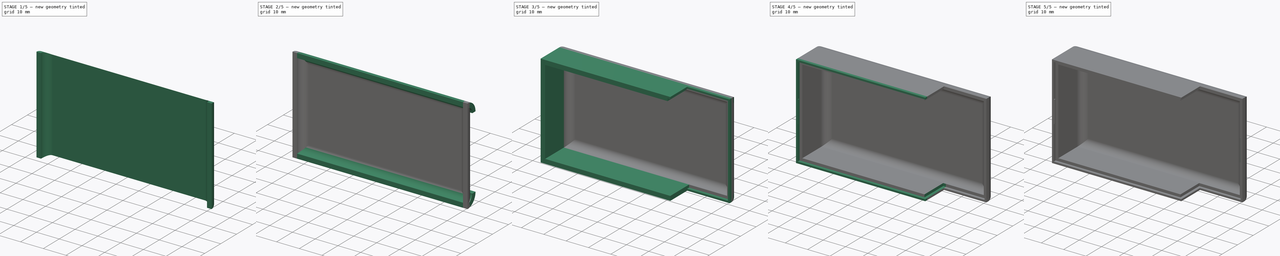
[diagram: build sequence overview — one tinted view per stage of 5, left to right]
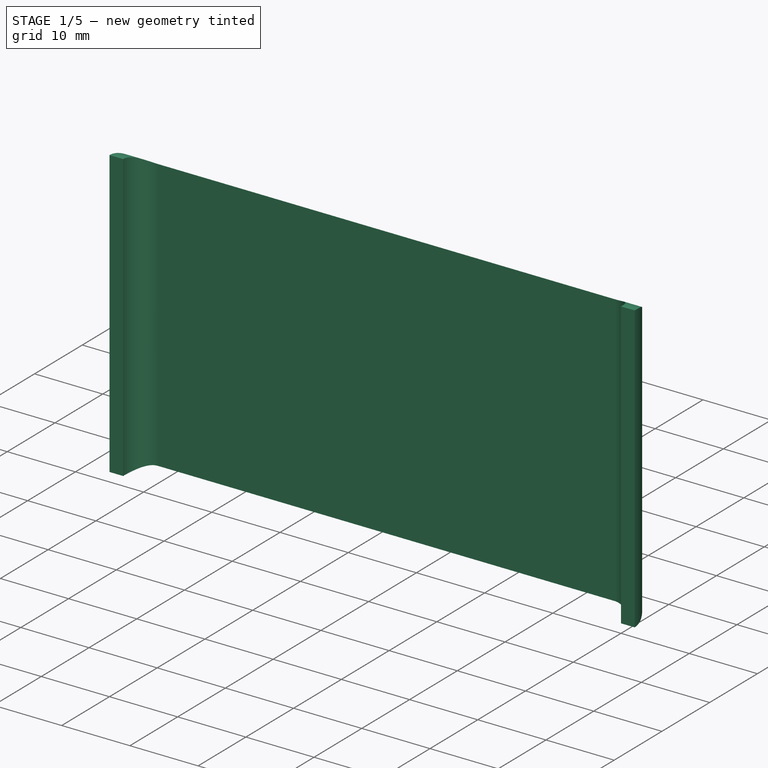
[diagram: stage 1 of 5 — iso view after this stage's code; geometry added in this stage tinted green]
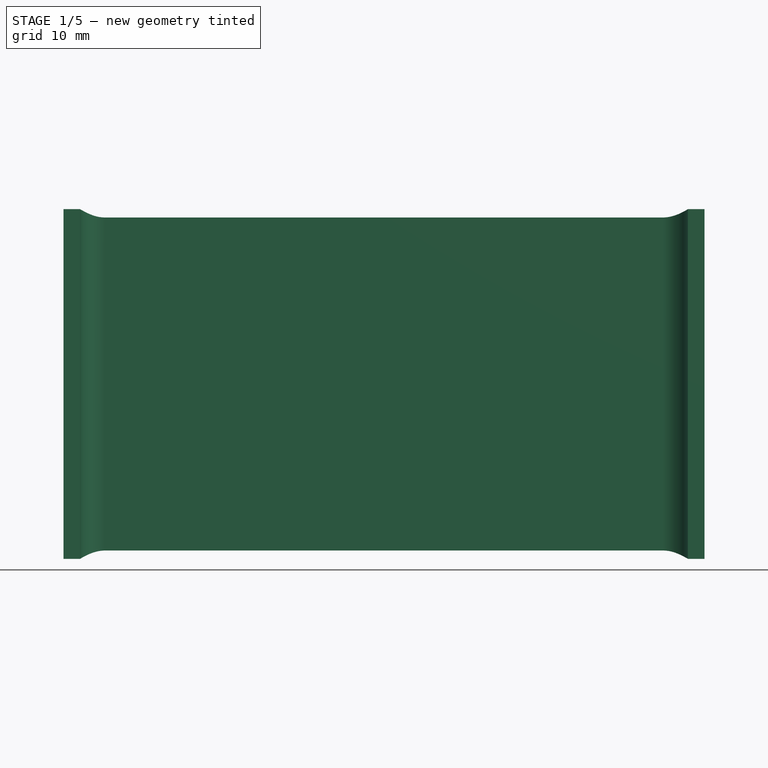
[diagram: stage 1 of 5 — front view after this stage's code; geometry added in this stage tinted green]
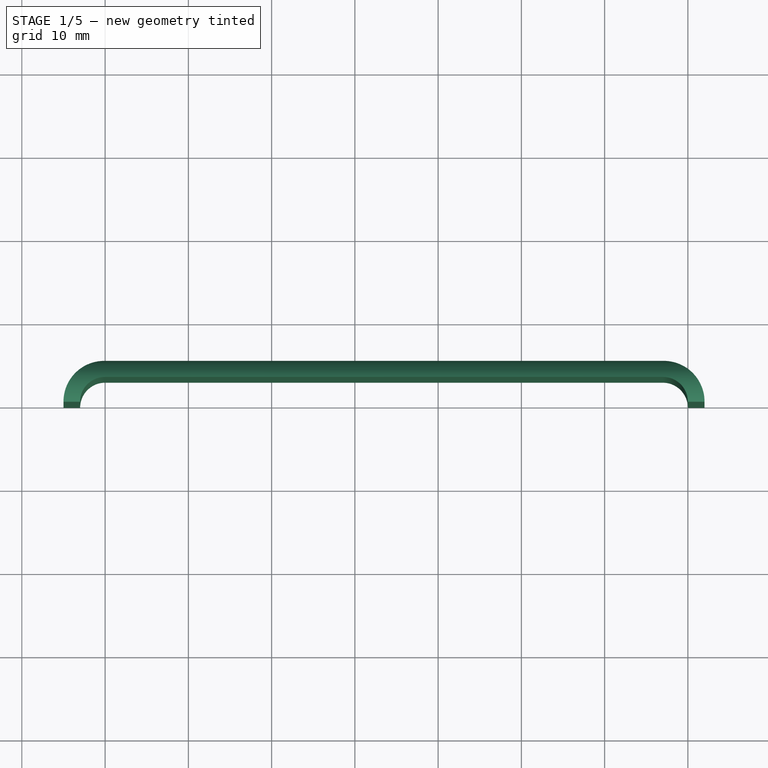
[diagram: stage 1 of 5 — top view after this stage's code; geometry added in this stage tinted green]
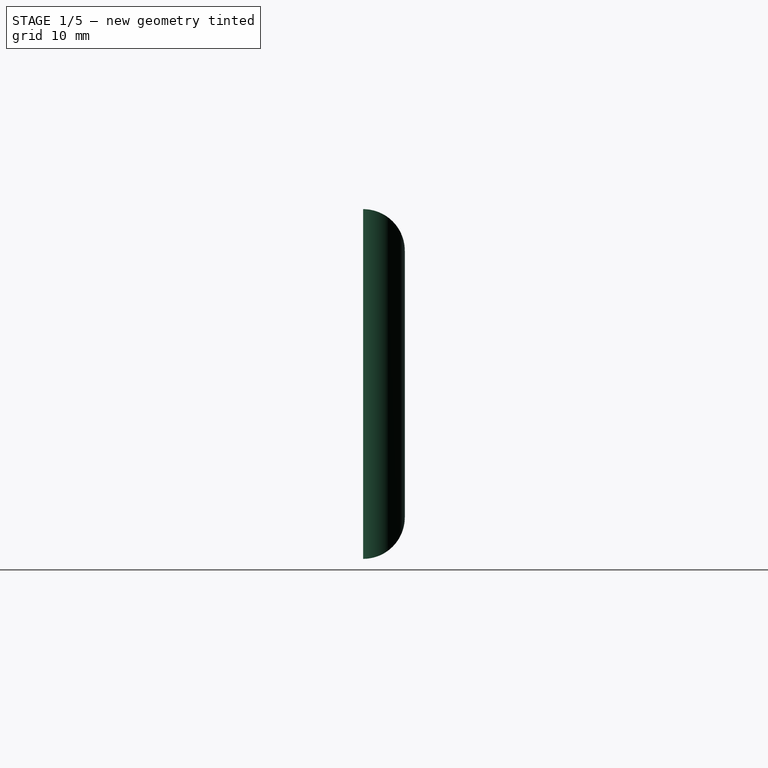
[diagram: stage 1 of 5 — right view after this stage's code; geometry added in this stage tinted green]
FCSTD DOCUMENT  (FreeCAD 0.20R29603 (Git))
Label: batteryHolderCap
License: All rights reserved
LicenseURL: http://en.wikipedia.org/wiki/All_rights_reserved
objects: Sketcher::SketchObject×14, PartDesign::Pad×8, PartDesign::Pocket×6, PartDesign::Fillet×2, PartDesign::Plane×1, PartDesign::Body×1
note: 48 computed .brp shape members not serialized (recipe doc carries the construction recipe); baked Part::Feature solids carry a one-line shape summary decoded from their .brp

FEATURE [Sketcher::SketchObject] Sketch
  FullyConstrained = true
  MapMode = 5
  Support = -> [XY_Plane]
  sketch-geometry (8):
    g0: LineSegment StartX=4.47964e-11 StartY=3 StartZ=0 EndX=67 EndY=3 EndZ=0
    g1: LineSegment StartX=3e-16 StartY=5 StartZ=0 EndX=67 EndY=5 EndZ=0
    g2: ArcOfCircle CenterX=0 CenterY=0 CenterZ=0 NormalX=0 NormalY=0 NormalZ=1 AngleXU=0 Radius=3 StartAngle=1.5708 EndAngle=3.14159
    g3: ArcOfCircle CenterX=0 CenterY=0 CenterZ=0 NormalX=0 NormalY=0 NormalZ=1 AngleXU=0 Radius=5 StartAngle=1.5708 EndAngle=3.14159
    g4: LineSegment StartX=-5 StartY=6e-16 StartZ=0 EndX=-3 EndY=3.73332e-11 EndZ=0
    g5: ArcOfCircle CenterX=67 CenterY=0 CenterZ=0 NormalX=0 NormalY=0 NormalZ=1 AngleXU=0 Radius=3 StartAngle=0 EndAngle=1.5708
    g6: ArcOfCircle CenterX=67 CenterY=0 CenterZ=0 NormalX=0 NormalY=0 NormalZ=1 AngleXU=0 Radius=5 StartAngle=0 EndAngle=1.5708
    g7: LineSegment StartX=70 StartY=0 StartZ=0 EndX=72 EndY=0 EndZ=0
  constraints (25):
    c: PointOnObject(g0,g-2)
    c: Horizontal(g0)
    c: DistanceX(g0,g0) = 67
    c: Distance(g-1,g0) = 3
    c: PointOnObject(g1,g-2)
    c: Horizontal(g1)
    c: Equal(g1,g0)
    c: Distance(g1,g0) = 2
    c: Coincident(g2,g-1)
    c: Coincident(g2,g0)
    c: PointOnObject(g2,g-1)
    c: Coincident(g3,g2)
    c: Coincident(g3,g1)
    c: PointOnObject(g3,g-1)
    c: Coincident(g4,g3)
    c: Coincident(g4,g2)
    c: PointOnObject(g5,g-1)
    c: Coincident(g5,g0)
    c: PointOnObject(g5,g-1)
    c: DistanceX(g0,g5) = 0
    c: Coincident(g6,g5)
    c: Coincident(g6,g1)
    c: PointOnObject(g6,g-1)
    c: Coincident(g7,g5)
    c: Coincident(g7,g6)
FEATURE [PartDesign::Pad] Pad
  Direction = (0,0,1)
  Length = 42
  Length2 = 10
  Profile = -> Sketch
  ReferenceAxis = -> Sketch [N_Axis]
  Type = 0
FEATURE [PartDesign::Plane] DatumPlane
  AttachmentOffset = pos=(-5,0,0) rot=(0,1,0;1.5708rad)
  Length = 78.5758
  MapMode = 5
  Placement = pos=(-5,0,42) rot=(0,1,0;1.5708rad)
  ResizeMode = 0
  Support = -> [Pad]
  Width = 61.5758
FEATURE [Sketcher::SketchObject] Sketch001
  AttachmentOffset = pos=(0,0,77) rot=(0,0,1;0rad)
  FullyConstrained = true
  MapMode = 5
  Placement = pos=(72,0,42) rot=(0,1,0;1.5708rad)
  Support = -> [DatumPlane]
  sketch-geometry (3):
    g0: ArcOfCircle CenterX=5 CenterY=0 CenterZ=0 NormalX=0 NormalY=0 NormalZ=1 AngleXU=0 Radius=5 StartAngle=1.5708 EndAngle=3.14159
    g1: LineSegment StartX=5 StartY=5 StartZ=0 EndX=0 EndY=5 EndZ=0
    g2: LineSegment StartX=0 StartY=5 StartZ=0 EndX=0 EndY=9e-16 EndZ=0
  constraints (9):
    c: PointOnObject(g0,g-1)
    c: DistanceX(g0,g0) = 0
    c: Horizontal(g1)
    c: Coincident(g2,g1)
    c: Vertical(g2)
    c: DistanceX(g-1,g0) = 5
    c: Coincident(g2,g0)
    c: Coincident(g0,g1)
    c: Coincident(g0,g-1)
FEATURE [Sketcher::SketchObject] Sketch002
  AttachmentOffset = pos=(0,0,77) rot=(0,0,1;0rad)
  FullyConstrained = false
  MapMode = 5
  Placement = pos=(72,0,42) rot=(0,1,0;1.5708rad)
  Support = -> [DatumPlane]
  sketch-geometry (3):
    g0: ArcOfCircle CenterX=37 CenterY=0 CenterZ=0 NormalX=0 NormalY=0 NormalZ=1 AngleXU=0 Radius=5 StartAngle=2e-16 EndAngle=1.5708
    g1: LineSegment StartX=37 StartY=5 StartZ=0 EndX=43.271 EndY=5 EndZ=0
    g2: LineSegment StartX=42 StartY=1e-15 StartZ=0 EndX=43.271 EndY=5 EndZ=0
  constraints (7):
    c: PointOnObject(g0,g-1)
    c: Radius(g0) = 5
    c: DistanceX(g0,g0) = 0
    c: Coincident(g1,g0)
    c: Horizontal(g1)
    c: Coincident(g2,g0)
    c: Coincident(g2,g1)
FEATURE [Sketcher::SketchObject] Sketch003
  FullyConstrained = true
  MapMode = 5
  Placement = pos=(-5,0,42) rot=(0,1,0;1.5708rad)
  Support = -> [DatumPlane]
  sketch-geometry (4):
    g0: ArcOfCircle CenterX=5 CenterY=0 CenterZ=0 NormalX=0 NormalY=0 NormalZ=1 AngleXU=0 Radius=5 StartAngle=1.5708 EndAngle=3.14159
    g1: ArcOfCircle CenterX=5 CenterY=0 CenterZ=0 NormalX=0 NormalY=0 NormalZ=1 AngleXU=0 Radius=3 StartAngle=1.5708 EndAngle=3.14159
    g2: LineSegment StartX=5 StartY=5 StartZ=0 EndX=5 EndY=3 EndZ=0
    g3: LineSegment StartX=0 StartY=6e-16 StartZ=0 EndX=2 EndY=4e-16 EndZ=0
  constraints (12):
    c: PointOnObject(g0,g-1)
    c: Radius(g0) = 5
    c: DistanceX(g0,g0) = 0
    c: Coincident(g1,g0)
    c: PointOnObject(g1,g-1)
    c: Radius(g1) = 3
    c: Coincident(g2,g0)
    c: Coincident(g2,g1)
    c: Vertical(g2)
    c: Coincident(g3,g0)
    c: Coincident(g3,g1)
    c: Coincident(g-1,g0)
FEATURE [Sketcher::SketchObject] Sketch004
  FullyConstrained = true
  MapMode = 5
  Placement = pos=(-5,0,42) rot=(0,1,0;1.5708rad)
  Support = -> [DatumPlane]
  sketch-geometry (4):
    g0: ArcOfCircle CenterX=37 CenterY=0 CenterZ=0 NormalX=0 NormalY=0 NormalZ=1 AngleXU=0 Radius=5 StartAngle=0 EndAngle=1.5708
    g1: ArcOfCircle CenterX=37 CenterY=0 CenterZ=0 NormalX=0 NormalY=0 NormalZ=1 AngleXU=0 Radius=3 StartAngle=0 EndAngle=1.5708
    g2: LineSegment StartX=37 StartY=3 StartZ=0 EndX=37 EndY=5 EndZ=0
    g3: LineSegment StartX=42 StartY=0 StartZ=0 EndX=40 EndY=0 EndZ=0
  constraints (13):
    c: PointOnObject(g0,g-1)
    c: Radius(g0) = 5
    c: DistanceX(g0,g0) = 0
    c: Coincident(g1,g0)
    c: PointOnObject(g1,g-1)
    c: Radius(g1) = 3
    c: Coincident(g2,g1)
    c: Coincident(g2,g0)
    c: Vertical(g2)
    c: Coincident(g3,g0)
    c: Coincident(g3,g1)
    c: Horizontal(g3)
    c: Distance(g-1,g0) = 42
FEATURE [PartDesign::Pocket] Pocket001
  BaseFeature = -> Pad
  Direction = (-1,0,-2e-16)
  Length = 77
  Length2 = 5
  Profile = -> Sketch002
  ReferenceAxis = -> Sketch002 [N_Axis]
  Type = 0
FEATURE [PartDesign::Pocket] Pocket
  BaseFeature = -> Pocket001
  Direction = (-1,0,-2e-16)
  Length = 77
  Length2 = 5
  Profile = -> Sketch001
  ReferenceAxis = -> Sketch001 [N_Axis]
  Type = 0
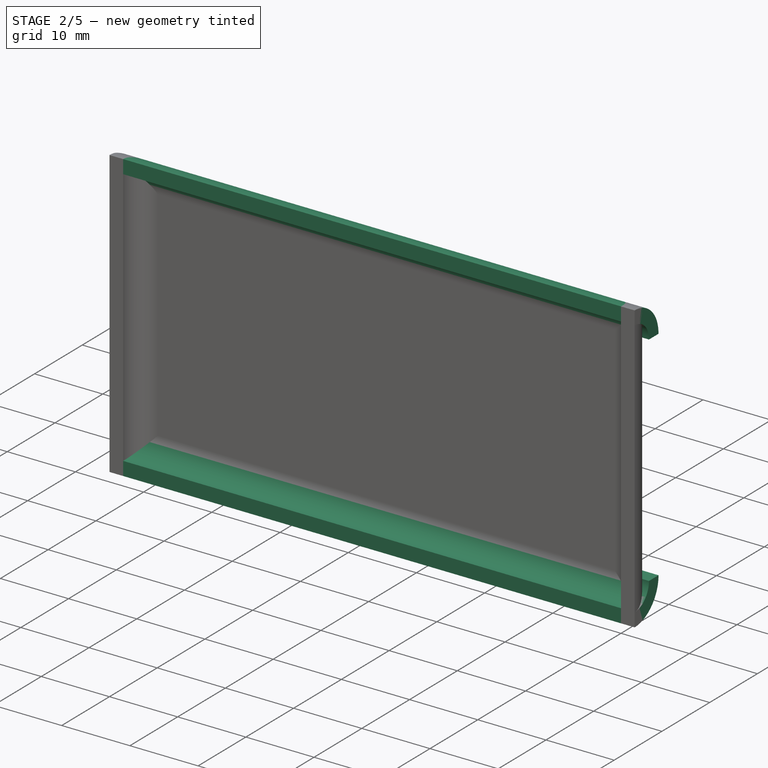
[diagram: stage 2 of 5 — iso view after this stage's code; geometry added in this stage tinted green]
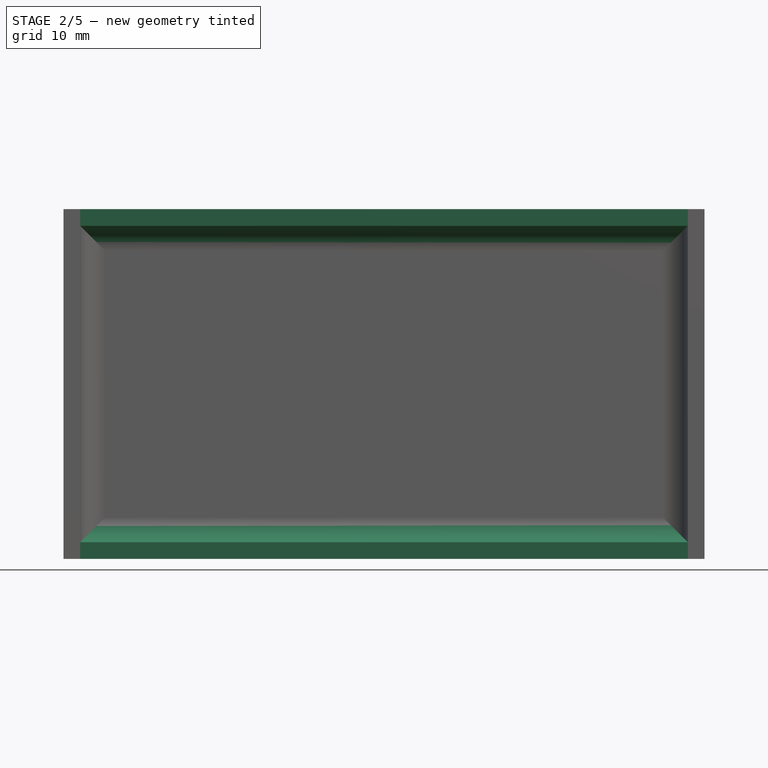
[diagram: stage 2 of 5 — front view after this stage's code; geometry added in this stage tinted green]
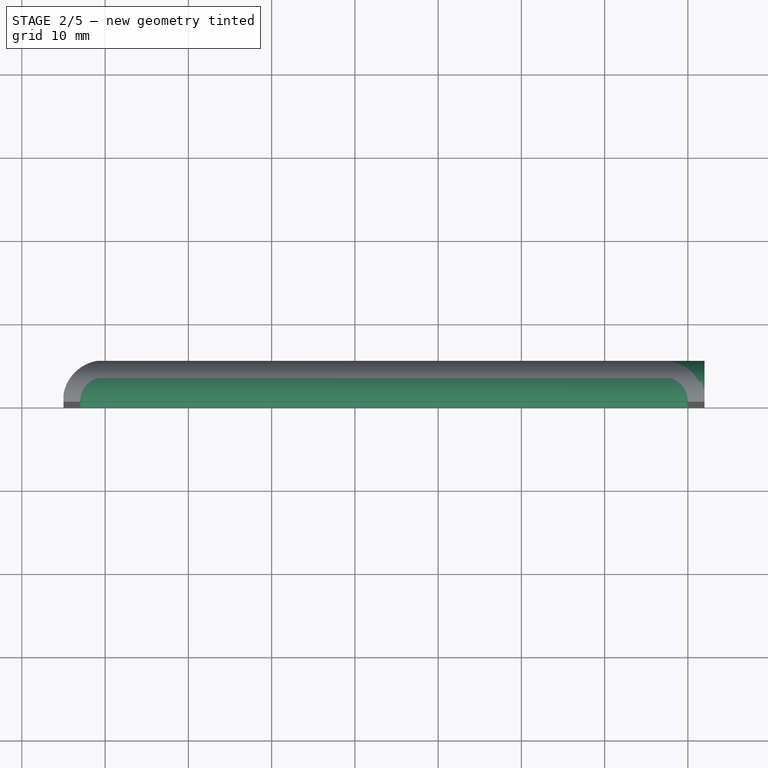
[diagram: stage 2 of 5 — top view after this stage's code; geometry added in this stage tinted green]
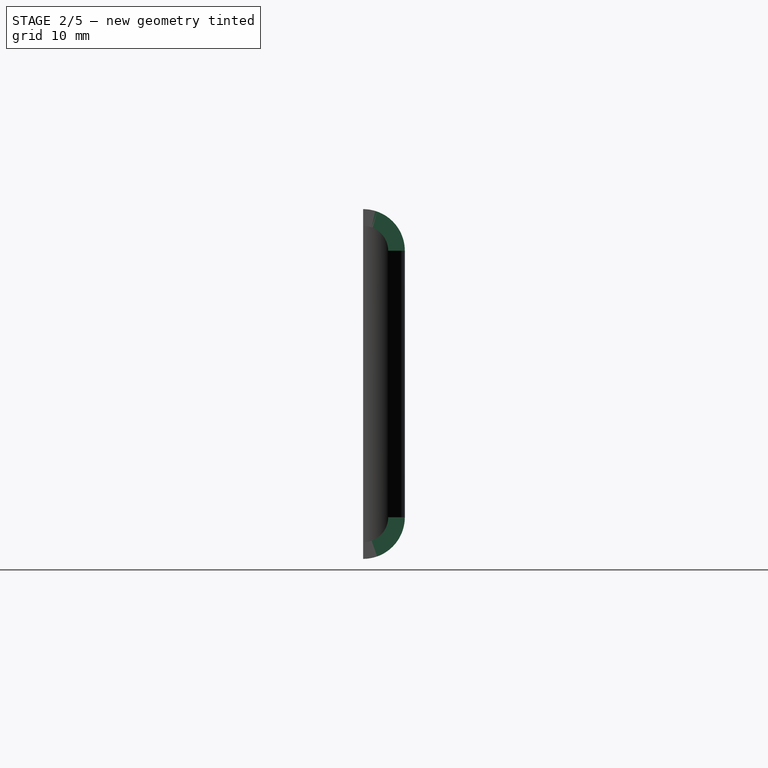
[diagram: stage 2 of 5 — right view after this stage's code; geometry added in this stage tinted green]
FEATURE [PartDesign::Pad] Pad001
  BaseFeature = -> Pocket
  Direction = (1,0,2e-16)
  Length = 77
  Length2 = 10
  Profile = -> Sketch003
  ReferenceAxis = -> Sketch003 [N_Axis]
  Type = 0
FEATURE [PartDesign::Pad] Pad002
  BaseFeature = -> Pad001
  Direction = (1,0,2e-16)
  Length = 77
  Length2 = 10
  Profile = -> Sketch004
  ReferenceAxis = -> Sketch004 [N_Axis]
  Type = 0
FEATURE [Sketcher::SketchObject] Sketch005
  AttachmentOffset = pos=(0,0,37) rot=(0,0,1;0rad)
  FullyConstrained = false
  MapMode = 5
  Placement = pos=(-9.3e-15,0,42) rot=(0,0,1;0rad)
  Support = -> [Pad002]
  sketch-geometry (3):
    g0: ArcOfCircle CenterX=0 CenterY=0 CenterZ=0 NormalX=0 NormalY=0 NormalZ=1 AngleXU=0 Radius=5.07821 StartAngle=1.5708 EndAngle=3.14159
    g1: LineSegment StartX=3e-16 StartY=5.07821 StartZ=0 EndX=-5.07818 EndY=5.07821 EndZ=0
    g2: LineSegment StartX=-5.07821 StartY=6e-16 StartZ=0 EndX=-5.07818 EndY=5.07821 EndZ=0
  constraints (8):
    c: Coincident(g0,g-1)
    c: PointOnObject(g0,g-1)
    c: PointOnObject(g0,g-2)
    c: Coincident(g1,g0)
    c: Horizontal(g1)
    c: Coincident(g2,g0)
    c: Coincident(g2,g1)
    c: Tangent(g2,g0)
FEATURE [PartDesign::Pocket] Pocket002
  BaseFeature = -> Pad002
  Direction = (2e-16,0,-1)
  Length = 42
  Length2 = 5
  Profile = -> Sketch005
  ReferenceAxis = -> Sketch005 [N_Axis]
  Type = 0
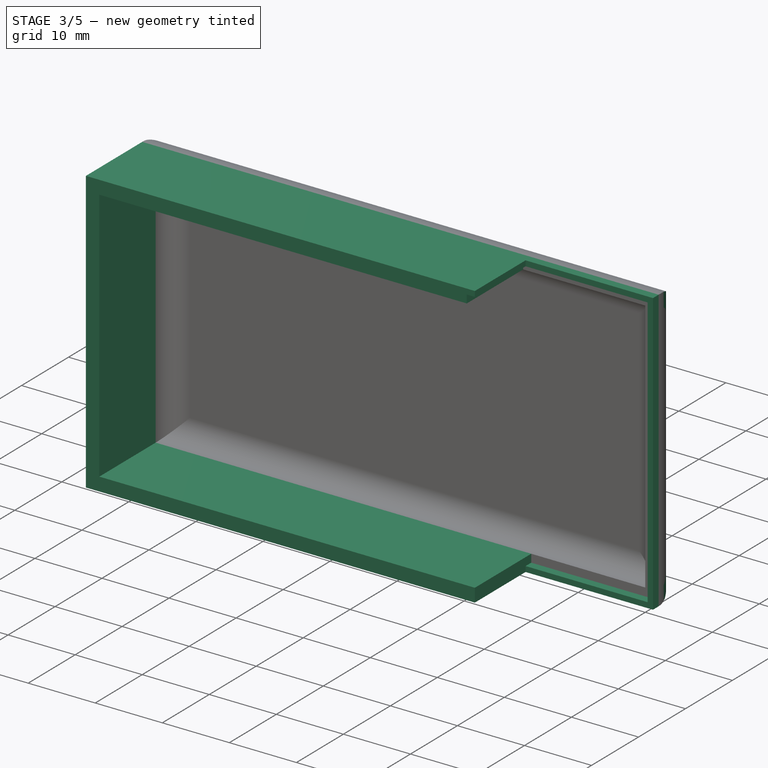
[diagram: stage 3 of 5 — iso view after this stage's code; geometry added in this stage tinted green]
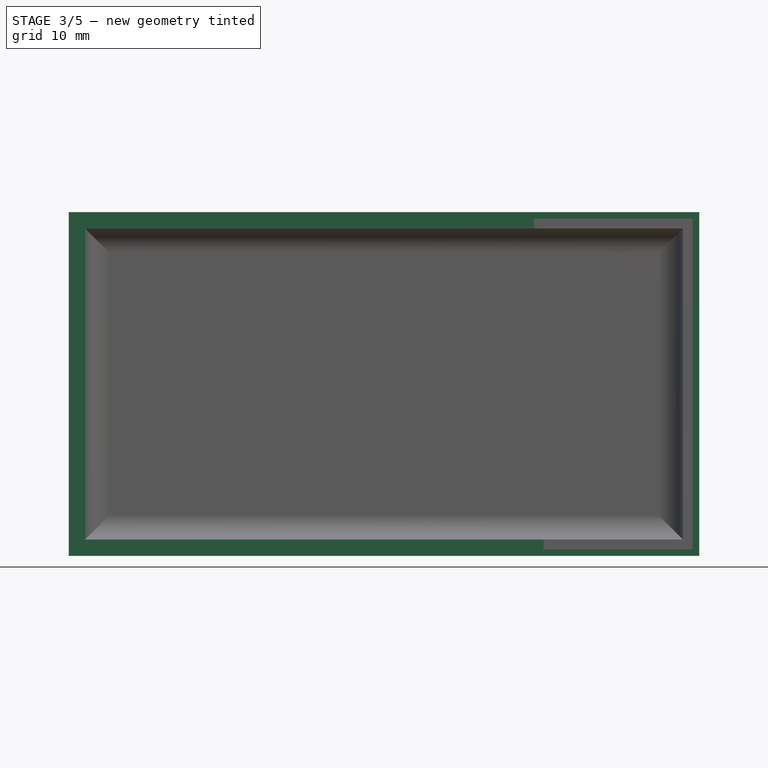
[diagram: stage 3 of 5 — front view after this stage's code; geometry added in this stage tinted green]
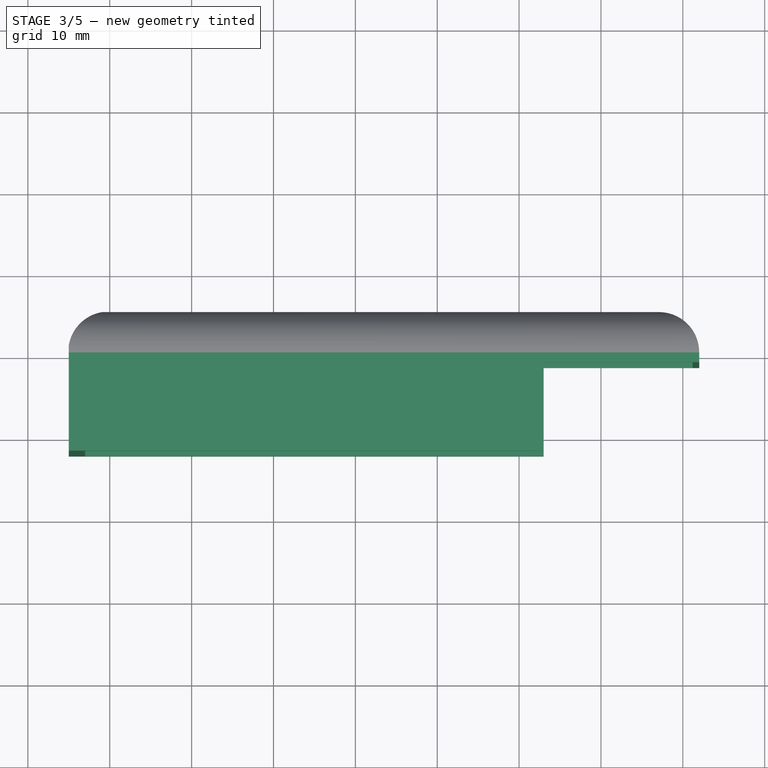
[diagram: stage 3 of 5 — top view after this stage's code; geometry added in this stage tinted green]
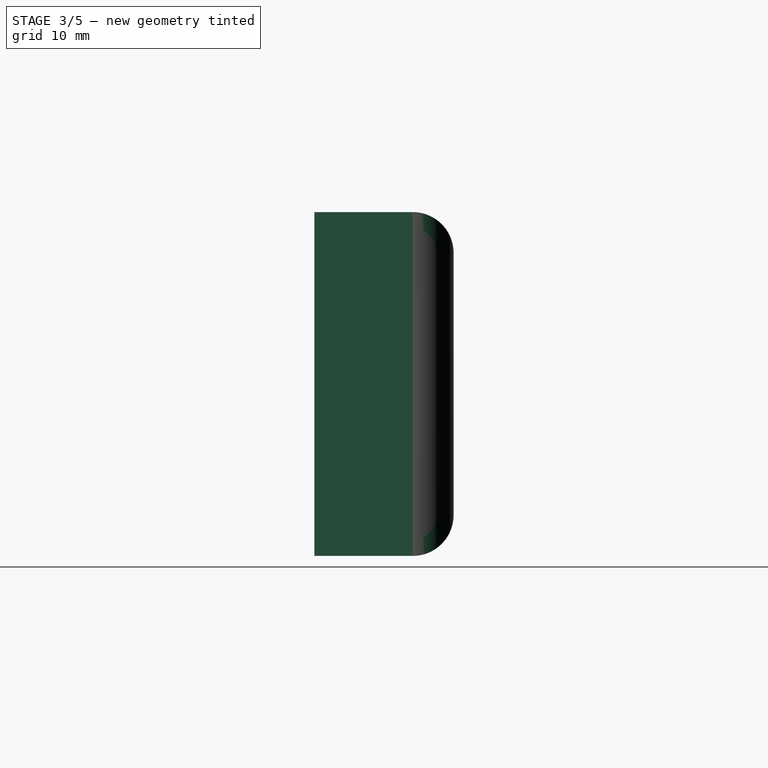
[diagram: stage 3 of 5 — right view after this stage's code; geometry added in this stage tinted green]
FEATURE [Sketcher::SketchObject] Sketch006
  AttachmentOffset = pos=(0,0,37) rot=(0,0,1;0rad)
  ExternalGeometry = -> [Pocket002]
  FullyConstrained = true
  MapMode = 5
  Placement = pos=(0,0,0) rot=(1,0,0;3.14159rad)
  Support = -> [Pocket002]
  sketch-geometry (3):
    g0: ArcOfCircle CenterX=67 CenterY=0 CenterZ=0 NormalX=0 NormalY=0 NormalZ=1 AngleXU=0 Radius=5 StartAngle=4.71239 EndAngle=6.28319
    g1: LineSegment StartX=67 StartY=-5 StartZ=0 EndX=72 EndY=-5 EndZ=0
    g2: LineSegment StartX=72 StartY=-1.2e-15 StartZ=0 EndX=72 EndY=-5 EndZ=0
  constraints (9):
    c: PointOnObject(g0,g-1)
    c: PointOnObject(g0,g-1)
    c: PointOnObject(g0,g-4)
    c: DistanceX(g0,g0) = 0
    c: DistanceX(g-4,g0) = 0
    c: Coincident(g1,g0)
    c: Coincident(g1,g-4)
    c: Coincident(g2,g0)
    c: Coincident(g2,g1)
FEATURE [PartDesign::Pocket] Pocket003
  BaseFeature = -> Pocket002
  Direction = (-2e-16,0,1)
  Length = 42
  Length2 = 5
  Profile = -> Sketch006
  ReferenceAxis = -> Sketch006 [N_Axis]
  Type = 0
FEATURE [Sketcher::SketchObject] Sketch007
  ExternalGeometry = -> [DatumPlane,Pocket003]
  FullyConstrained = true
  MapMode = 5
  Placement = pos=(0,0,0) rot=(1,0,0;1.5708rad)
  Support = -> [Pocket003]
  sketch-geometry (8):
    g0: LineSegment StartX=-5 StartY=42 StartZ=0 EndX=53 EndY=42 EndZ=0
    g1: LineSegment StartX=53 StartY=42 StartZ=0 EndX=53 EndY=40 EndZ=0
    g2: LineSegment StartX=53 StartY=40 StartZ=0 EndX=-3 EndY=40 EndZ=0
    g3: LineSegment StartX=-3 StartY=40 StartZ=0 EndX=-3 EndY=2 EndZ=0
    g4: LineSegment StartX=-3 StartY=2 StartZ=0 EndX=53 EndY=2 EndZ=0
    g5: LineSegment StartX=53 StartY=2 StartZ=0 EndX=53 EndY=0 EndZ=0
    g6: LineSegment StartX=53 StartY=0 StartZ=0 EndX=-5 EndY=0 EndZ=0
    g7: LineSegment StartX=-5 StartY=0 StartZ=0 EndX=-5 EndY=42 EndZ=0
  constraints (20):
    c: Coincident(g-6,g0)
    c: Horizontal(g0)
    c: Coincident(g0,g1)
    c: Vertical(g1)
    c: Coincident(g1,g2)
    c: Coincident(g2,g-7)
    c: Horizontal(g2)
    c: Coincident(g2,g3)
    c: Coincident(g3,g-4)
    c: Coincident(g3,g4)
    c: Horizontal(g4)
    c: Coincident(g4,g5)
    c: Vertical(g5)
    c: Coincident(g5,g6)
    c: Coincident(g6,g-5)
    c: Horizontal(g6)
    c: Coincident(g6,g7)
    c: Coincident(g7,g0)
    c: Equal(g0,g6)
    c: DistanceX(g0,g0) = 58
FEATURE [PartDesign::Pad] Pad003
  BaseFeature = -> Pocket003
  Direction = (0,-1,2e-16)
  Length = 12
  Length2 = 10
  Profile = -> Sketch007
  ReferenceAxis = -> Sketch007 [N_Axis]
  Type = 0
FEATURE [Sketcher::SketchObject] Sketch008
  ExternalGeometry = -> [Pad003]
  FullyConstrained = true
  MapMode = 5
  Placement = pos=(0,0,0) rot=(1,0,0;1.5708rad)
  Support = -> [Pad003]
  sketch-geometry (8):
    g0: LineSegment StartX=53 StartY=42 StartZ=0 EndX=72 EndY=42 EndZ=0
    g1: LineSegment StartX=72 StartY=42 StartZ=0 EndX=72 EndY=0 EndZ=0
    g2: LineSegment StartX=72 StartY=0 StartZ=0 EndX=53 EndY=1.29e-14 EndZ=0
    g3: LineSegment StartX=53 StartY=1.29e-14 StartZ=0 EndX=53 EndY=0.8 EndZ=0
    g4: LineSegment StartX=53 StartY=0.8 StartZ=0 EndX=71.2 EndY=0.8 EndZ=0
    g5: LineSegment StartX=71.2 StartY=0.8 StartZ=0 EndX=71.2 EndY=41.2 EndZ=0
    g6: LineSegment StartX=71.2 StartY=41.2 StartZ=0 EndX=53 EndY=41.2 EndZ=0
    g7: LineSegment StartX=53 StartY=41.2 StartZ=0 EndX=53 EndY=42 EndZ=0
  constraints (20):
    c: Coincident(g-3,g0)
    c: Coincident(g0,g-4)
    c: Coincident(g0,g1)
    c: Coincident(g1,g-5)
    c: Coincident(g1,g2)
    c: Coincident(g2,g-6)
    c: Coincident(g2,g3)
    c: Vertical(g3)
    c: Coincident(g3,g4)
    c: Horizontal(g4)
    c: Coincident(g4,g5)
    c: Vertical(g5)
    c: Coincident(g5,g6)
    c: Horizontal(g6)
    c: Coincident(g6,g7)
    c: Vertical(g7)
    c: Coincident(g7,g0)
    c: DistanceY(g6,g0) = 0.8
    c: DistanceX(g5,g0) = 0.8
    c: DistanceY(g-6,g4) = 0.8
FEATURE [PartDesign::Pad] Pad004
  BaseFeature = -> Pad003
  Direction = (0,-1,2e-16)
  Length = 1.2
  Length2 = 10
  Profile = -> Sketch008
  ReferenceAxis = -> Sketch008 [N_Axis]
  Type = 0
FEATURE [Sketcher::SketchObject] Sketch009
  ExternalGeometry = -> [Pad004]
  FullyConstrained = true
  MapMode = 5
  Placement = pos=(0,-12,2.7e-15) rot=(1,0,0;1.5708rad)
  Support = -> [Pad004]
  sketch-geometry (4):
    g0: LineSegment StartX=53 StartY=40 StartZ=0 EndX=51.8 EndY=40 EndZ=0
    g1: LineSegment StartX=51.8 StartY=40 StartZ=0 EndX=51.8 EndY=41.2 EndZ=0
    g2: LineSegment StartX=51.8 StartY=41.2 StartZ=0 EndX=53 EndY=41.2 EndZ=0
    g3: LineSegment StartX=53 StartY=41.2 StartZ=0 EndX=53 EndY=40 EndZ=0
  constraints (11):
    c: Coincident(g0,g1)
    c: Coincident(g1,g2)
    c: Coincident(g2,g3)
    c: Coincident(g3,g0)
    c: Horizontal(g0)
    c: Horizontal(g2)
    c: Vertical(g1)
    c: Vertical(g3)
    c: Coincident(g0,g-3)
    c: DistanceY(g3,g3) = 1.2
    c: DistanceX(g2,g2) = 1.2
FEATURE [PartDesign::Pocket] Pocket004
  BaseFeature = -> Pad004
  Direction = (0,1,-2e-16)
  Length = 12
  Length2 = 5
  Profile = -> Sketch009
  ReferenceAxis = -> Sketch009 [N_Axis]
  Type = 0
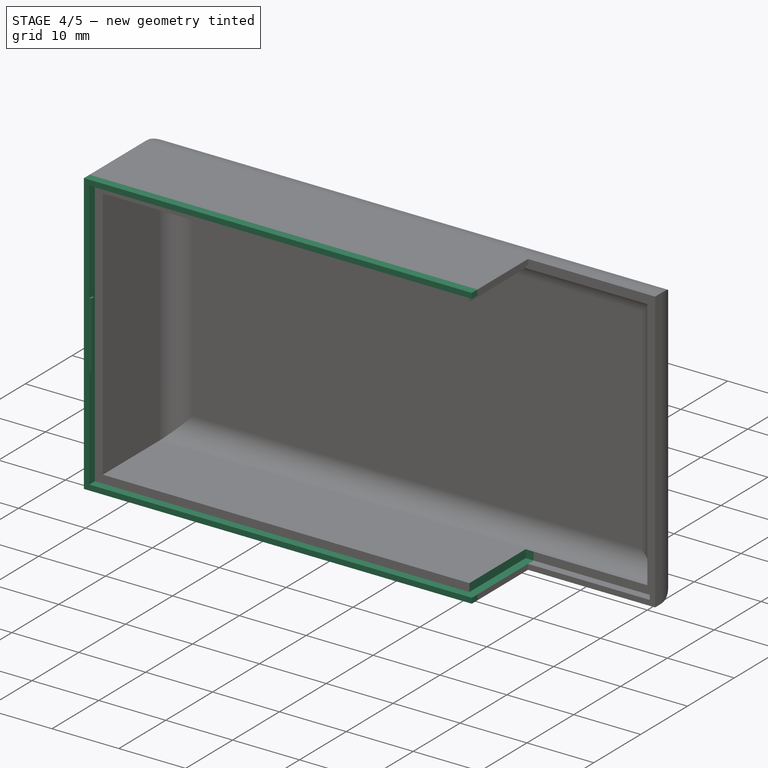
[diagram: stage 4 of 5 — iso view after this stage's code; geometry added in this stage tinted green]
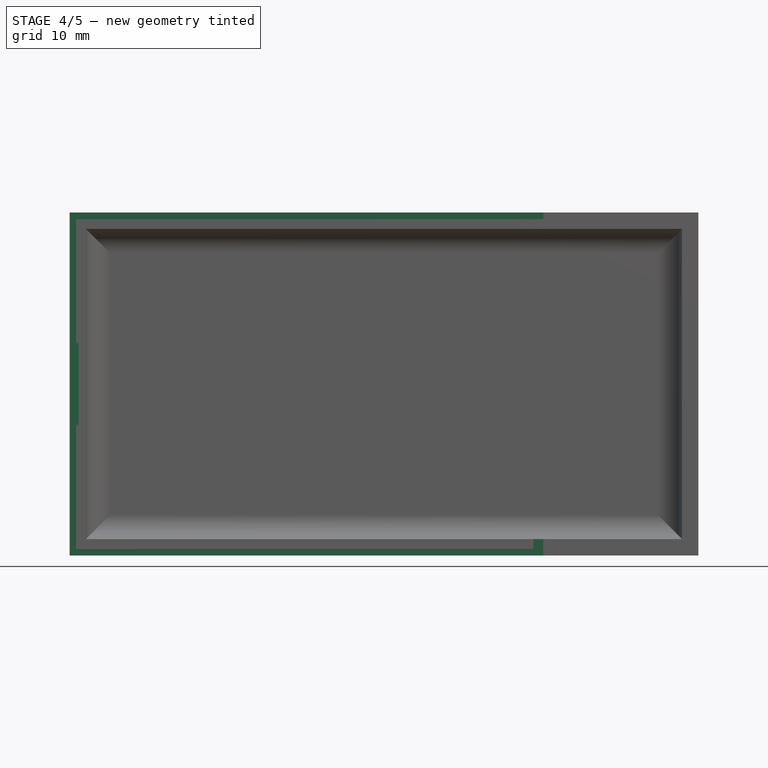
[diagram: stage 4 of 5 — front view after this stage's code; geometry added in this stage tinted green]
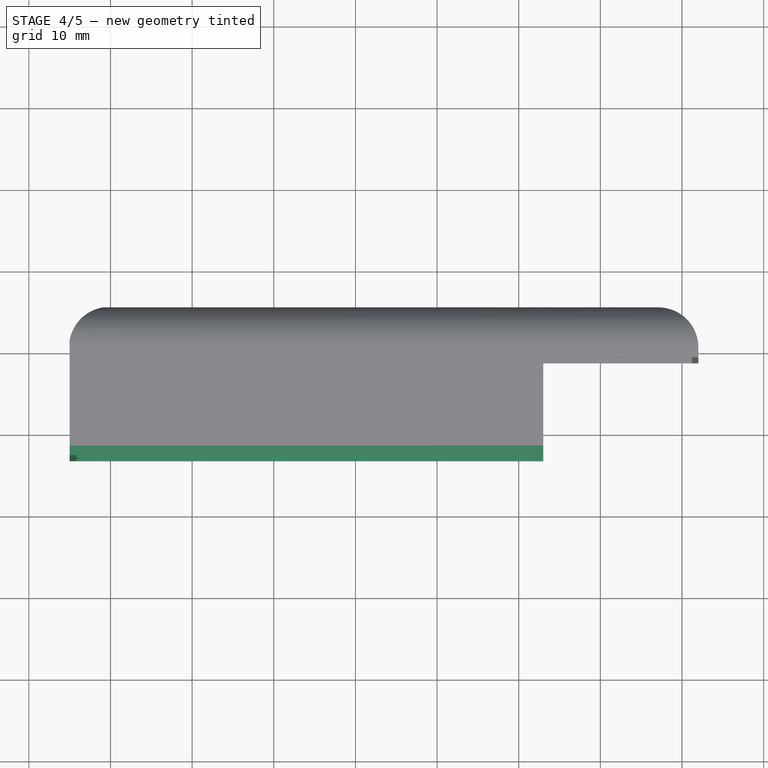
[diagram: stage 4 of 5 — top view after this stage's code; geometry added in this stage tinted green]
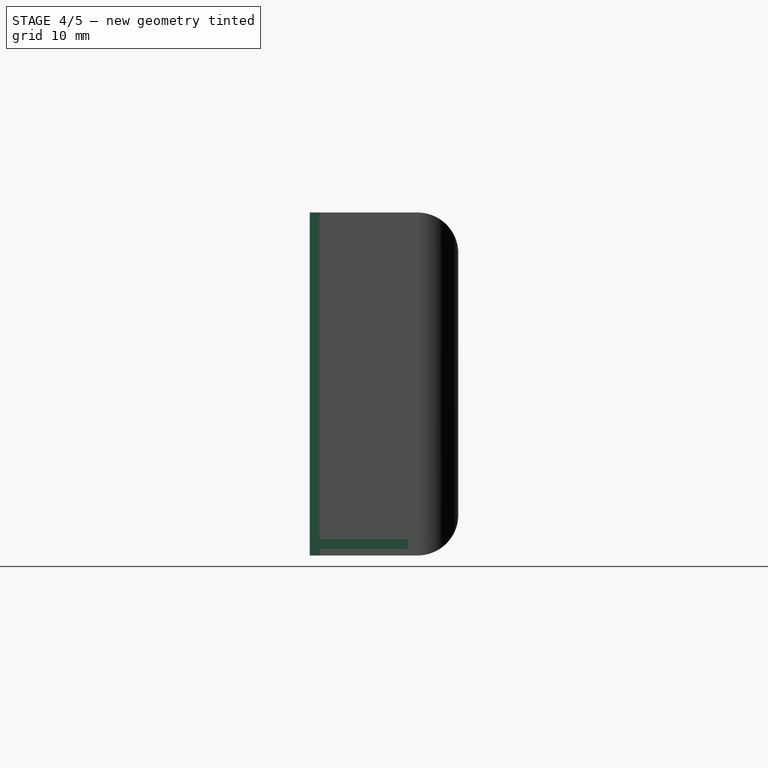
[diagram: stage 4 of 5 — right view after this stage's code; geometry added in this stage tinted green]
FEATURE [Sketcher::SketchObject] Sketch010
  ExternalGeometry = -> [Pocket004]
  FullyConstrained = true
  MapMode = 5
  Placement = pos=(0,-12,2.7e-15) rot=(1,0,0;1.5708rad)
  Support = -> [Pocket004]
  sketch-geometry (4):
    g0: LineSegment StartX=53 StartY=2 StartZ=0 EndX=51.8 EndY=2 EndZ=0
    g1: LineSegment StartX=51.8 StartY=2 StartZ=0 EndX=51.8 EndY=0.8 EndZ=0
    g2: LineSegment StartX=51.8 StartY=0.8 StartZ=0 EndX=53 EndY=0.8 EndZ=0
    g3: LineSegment StartX=53 StartY=0.8 StartZ=0 EndX=53 EndY=2 EndZ=0
  constraints (11):
    c: Coincident(g0,g1)
    c: Coincident(g1,g2)
    c: Coincident(g2,g3)
    c: Coincident(g3,g0)
    c: Horizontal(g0)
    c: Horizontal(g2)
    c: Vertical(g1)
    c: Vertical(g3)
    c: Coincident(g0,g-3)
    c: Equal(g1,g2)
    c: DistanceY(g3,g3) = 1.2
FEATURE [PartDesign::Pocket] Pocket005
  BaseFeature = -> Pocket004
  Direction = (0,1,-2e-16)
  Length = 12
  Length2 = 5
  Profile = -> Sketch010
  ReferenceAxis = -> Sketch010 [N_Axis]
  Type = 0
FEATURE [Sketcher::SketchObject] Sketch011
  ExternalGeometry = -> [Pocket005]
  FullyConstrained = true
  MapMode = 5
  Placement = pos=(0,-12,2.7e-15) rot=(1,0,0;1.5708rad)
  Support = -> [Pocket005]
  sketch-geometry (8):
    g0: LineSegment StartX=53 StartY=0 StartZ=0 EndX=-5 EndY=0 EndZ=0
    g1: LineSegment StartX=-5 StartY=0 StartZ=0 EndX=-5 EndY=42 EndZ=0
    g2: LineSegment StartX=-5 StartY=42 StartZ=0 EndX=53 EndY=42 EndZ=0
    g3: LineSegment StartX=53 StartY=42 StartZ=0 EndX=53 EndY=41.2 EndZ=0
    g4: LineSegment StartX=53 StartY=41.2 StartZ=0 EndX=-4.2 EndY=41.2 EndZ=0
    g5: LineSegment StartX=-4.2 StartY=41.2 StartZ=0 EndX=-4.2 EndY=0.8 EndZ=0
    g6: LineSegment StartX=-4.2 StartY=0.8 StartZ=0 EndX=53 EndY=0.8 EndZ=0
    g7: LineSegment StartX=53 StartY=0.8 StartZ=0 EndX=53 EndY=0 EndZ=0
  constraints (18):
    c: Coincident(g-6,g0)
    c: Coincident(g0,g-6)
    c: Coincident(g0,g1)
    c: Coincident(g1,g-5)
    c: Coincident(g1,g2)
    c: Coincident(g2,g-5)
    c: Coincident(g2,g3)
    c: Coincident(g3,g-3)
    c: Coincident(g3,g4)
    c: Horizontal(g4)
    c: Coincident(g4,g5)
    c: Vertical(g5)
    c: Coincident(g5,g6)
    c: Coincident(g6,g-4)
    c: Horizontal(g6)
    c: Coincident(g6,g7)
    c: Coincident(g7,g0)
    c: DistanceX(g0,g5) = 0.8
FEATURE [PartDesign::Pad] Pad005
  BaseFeature = -> Pocket005
  Direction = (0,-1,2e-16)
  Length = 1.2
  Length2 = 10
  Profile = -> Sketch011
  ReferenceAxis = -> Sketch011 [N_Axis]
  Type = 0
FEATURE [Sketcher::SketchObject] Sketch012
  ExternalGeometry = -> [Pad005]
  FullyConstrained = true
  MapMode = 5
  Placement = pos=(-4.2,0,0) rot=(0.57735,0.57735,0.57735;2.0944rad)
  Support = -> [Pad005]
  sketch-geometry (4):
    g0: LineSegment StartX=-13.2 StartY=26 StartZ=0 EndX=-12.6 EndY=26 EndZ=0
    g1: LineSegment StartX=-12.6 StartY=26 StartZ=0 EndX=-12.6 EndY=16 EndZ=0
    g2: LineSegment StartX=-12.6 StartY=16 StartZ=0 EndX=-13.2 EndY=16 EndZ=0
    g3: LineSegment StartX=-13.2 StartY=16 StartZ=0 EndX=-13.2 EndY=26 EndZ=0
  constraints (12):
    c: Coincident(g0,g1)
    c: Coincident(g1,g2)
    c: Coincident(g2,g3)
    c: Coincident(g3,g0)
    c: Horizontal(g0)
    c: Horizontal(g2)
    c: Vertical(g1)
    c: Vertical(g3)
    c: PointOnObject(g0,g-3)
    c: DistanceY(g1,g1) = 10
    c: DistanceY(g0,g-3) = 15.2
    c: DistanceX(g0,g0) = 0.6
FEATURE [PartDesign::Pad] Pad006
  BaseFeature = -> Pad005
  Direction = (1,0,0)
  Length = 0.3
  Length2 = 10
  Profile = -> Sketch012
  ReferenceAxis = -> Sketch012 [N_Axis]
  Type = 0
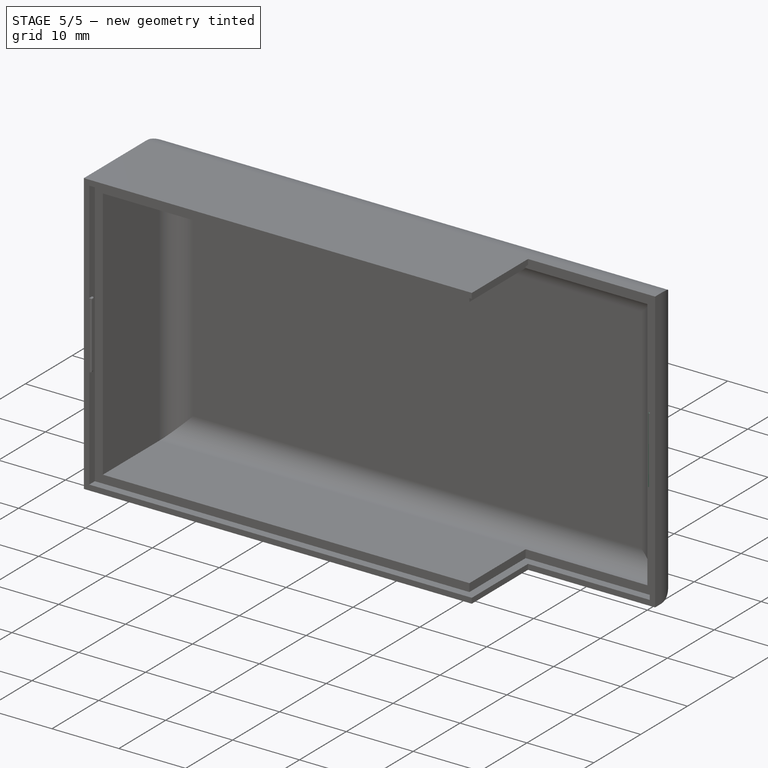
[diagram: stage 5 of 5 — iso view after this stage's code; geometry added in this stage tinted green]
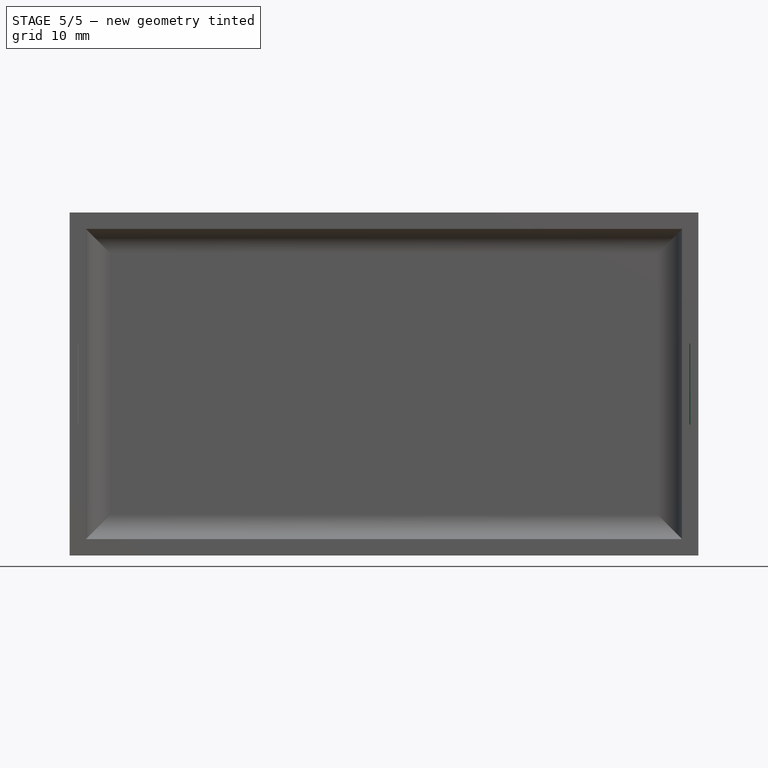
[diagram: stage 5 of 5 — front view after this stage's code; geometry added in this stage tinted green]
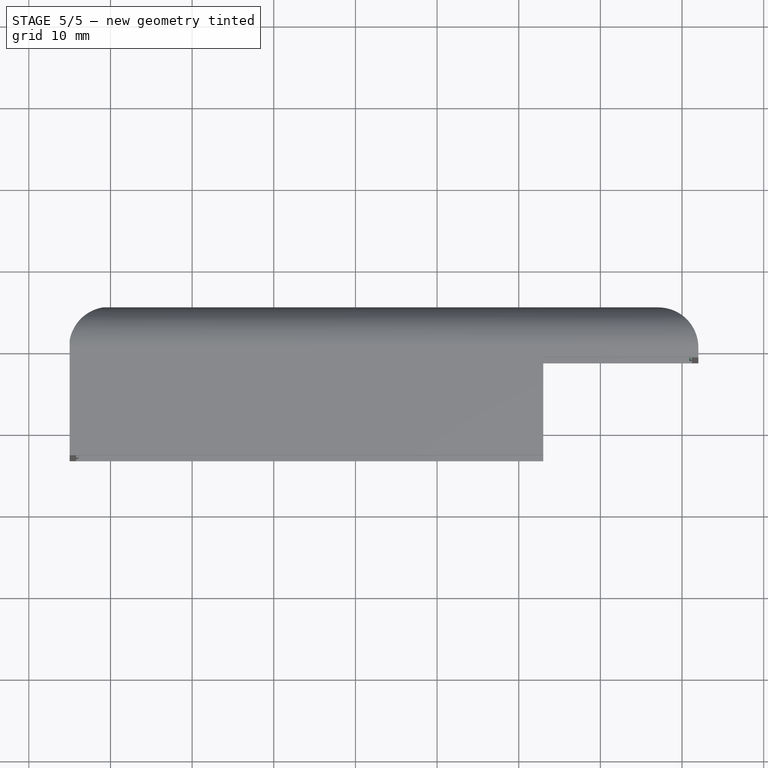
[diagram: stage 5 of 5 — top view after this stage's code; geometry added in this stage tinted green]
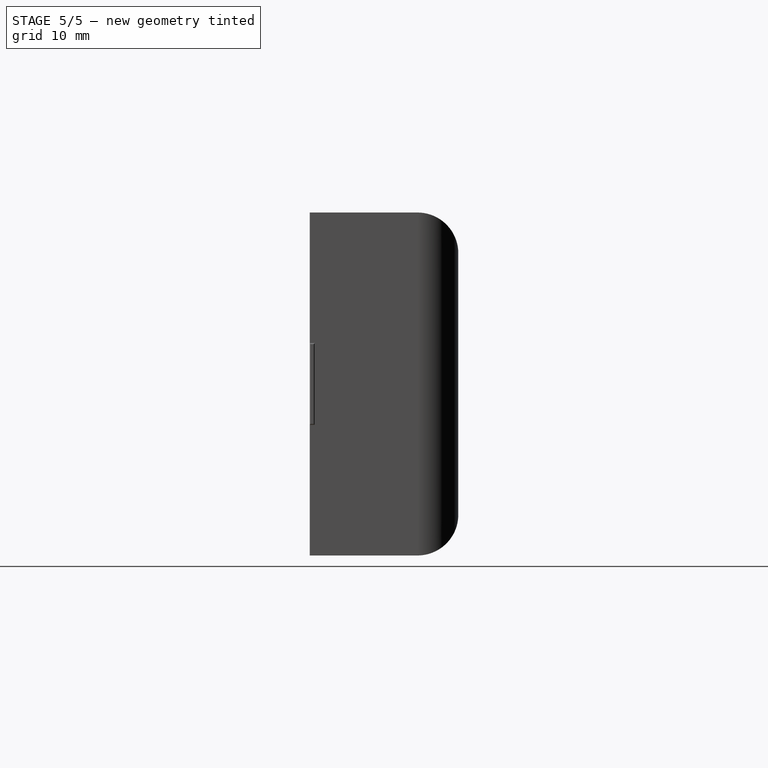
[diagram: stage 5 of 5 — right view after this stage's code; geometry added in this stage tinted green]
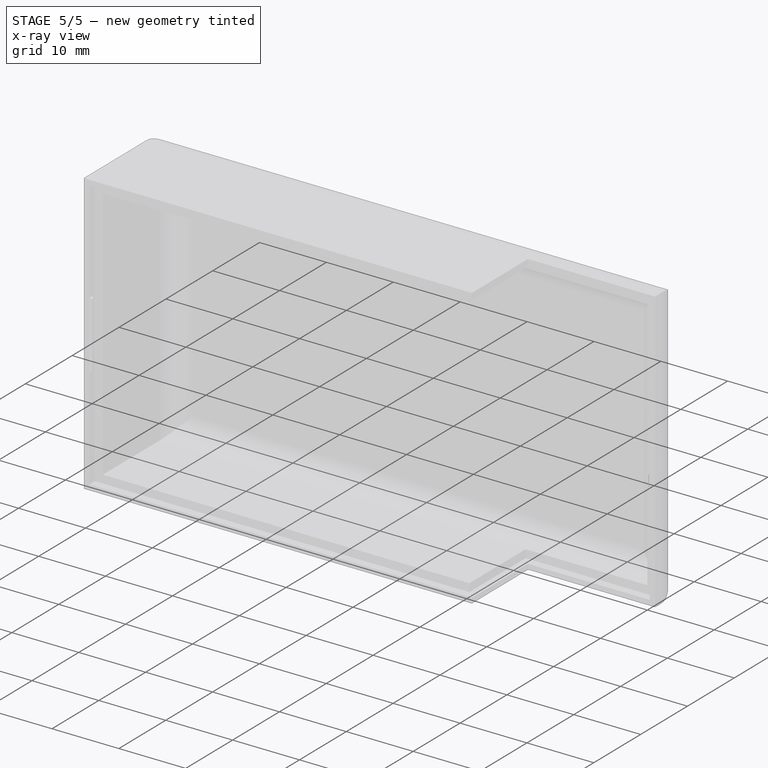
[diagram: stage 5 of 5 — x-ray composite at the iso view; earlier geometry ghosted, this stage's added geometry solid]
FEATURE [PartDesign::Fillet] Fillet
  Base = -> Pad006 [Face61]
  BaseFeature = -> Pad006
  Radius = 0.15
  SupportTransform = false
  UseAllEdges = false
FEATURE [Sketcher::SketchObject] Sketch013
  ExternalGeometry = -> [Fillet]
  FullyConstrained = true
  MapMode = 5
  Placement = pos=(71.2,0,0) rot=(0.57735,-0.57735,-0.57735;2.0944rad)
  Support = -> [Fillet]
  sketch-geometry (4):
    g0: LineSegment StartX=1.2 StartY=26 StartZ=0 EndX=0.4 EndY=26 EndZ=0
    g1: LineSegment StartX=0.4 StartY=26 StartZ=0 EndX=0.4 EndY=16 EndZ=0
    g2: LineSegment StartX=0.4 StartY=16 StartZ=0 EndX=1.2 EndY=16 EndZ=0
    g3: LineSegment StartX=1.2 StartY=16 StartZ=0 EndX=1.2 EndY=26 EndZ=0
  constraints (12):
    c: Coincident(g0,g1)
    c: Coincident(g1,g2)
    c: Coincident(g2,g3)
    c: Coincident(g3,g0)
    c: Horizontal(g0)
    c: Horizontal(g2)
    c: Vertical(g1)
    c: Vertical(g3)
    c: PointOnObject(g0,g-3)
    c: DistanceY(g3,g3) = 10
    c: DistanceX(g0,g0) = 0.8
    c: DistanceY(g0,g-3) = 15.2
FEATURE [PartDesign::Pad] Pad007
  BaseFeature = -> Fillet
  Direction = (-1,0,0)
  Length = 0.3
  Length2 = 10
  Profile = -> Sketch013
  ReferenceAxis = -> Sketch013 [N_Axis]
  Type = 0
FEATURE [PartDesign::Fillet] Fillet001
  Base = -> Pad007 [Face74]
  BaseFeature = -> Pad007
  Radius = 0.15
  SupportTransform = false
  UseAllEdges = false
FEATURE [PartDesign::Body] Body
  Group = -> [Sketch,Pad,DatumPlane,Sketch001,Sketch002,Pocket001,Pocket,Sketch003,Pad001,Sketch004,Pad002,Sketch005,Pocket002,Sketch006,Pocket003,Sketch007,Pad003,Sketch008,Pad004,Sketch009,Pocket004,Sketch010,Pocket005,Sketch011,Pad005,Sketch012,Pad006,Fillet,Sketch013,Pad007,Fillet001]
  Origin = -> Origin
  Tip = -> Fillet001
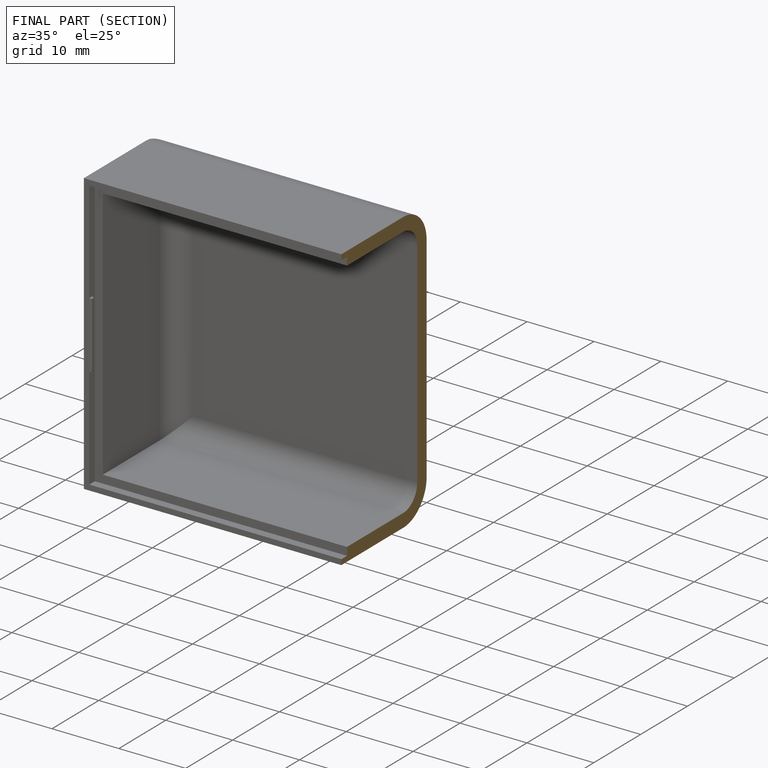
[diagram: finished part — half-section view (interior)]
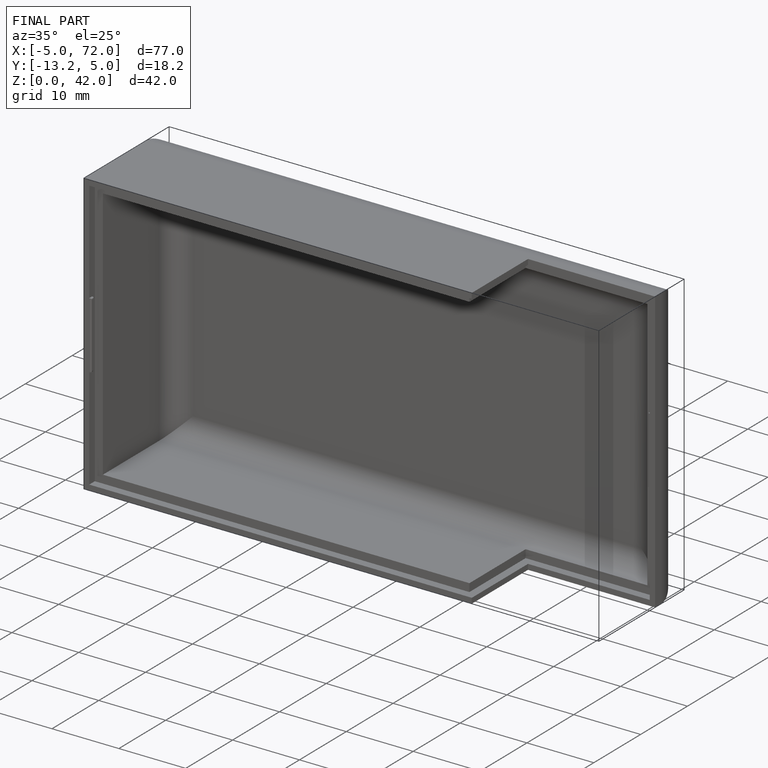
[diagram: finished part — iso view with bounding-box wireframe]
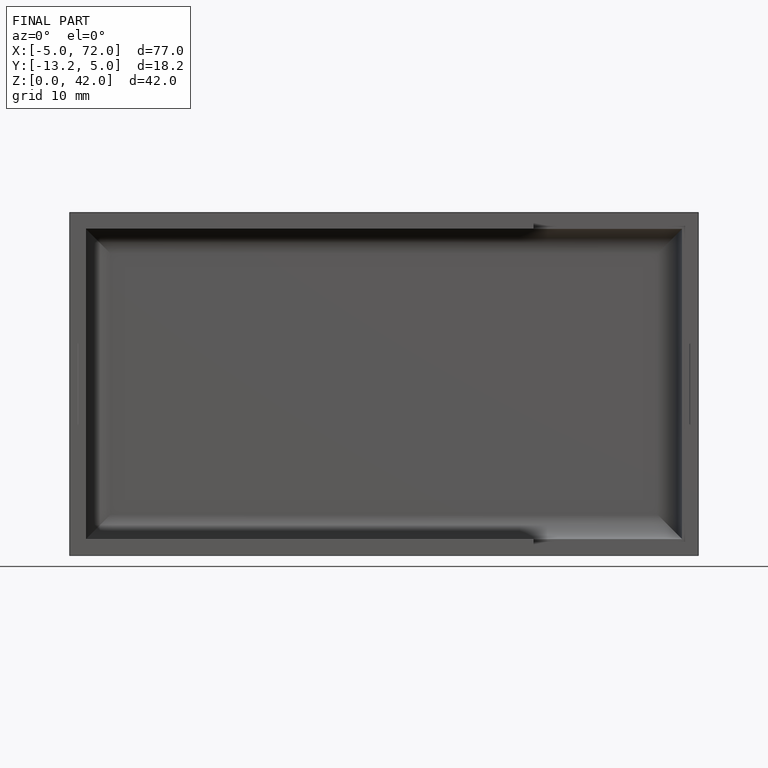
[diagram: finished part — front view with bounding-box wireframe]
